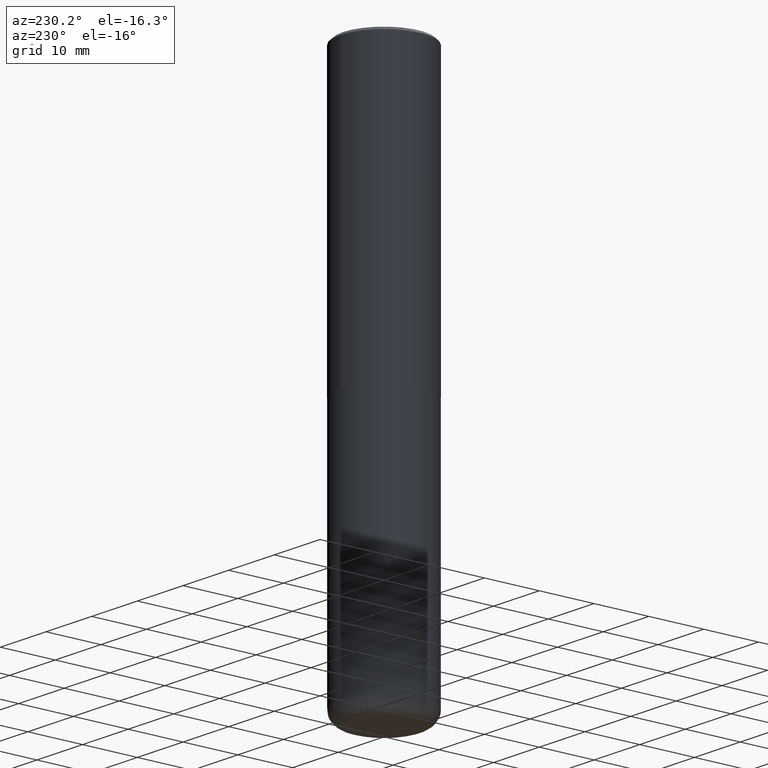
[diagram: clean part render]
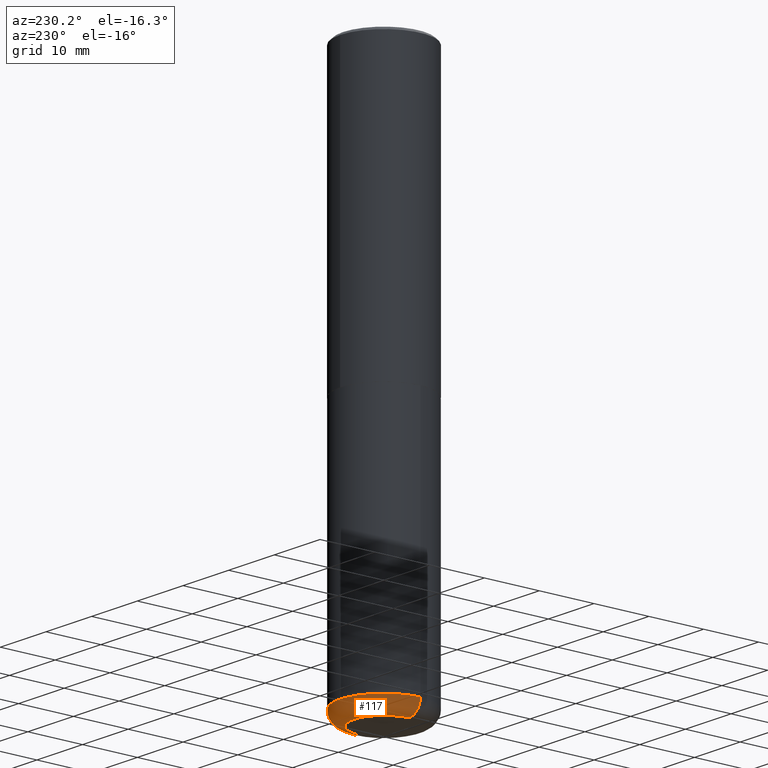
[diagram: same view with one face highlighted and labeled with its STEP entity id]
A machine part, auxiliary view. The second image highlights one B-rep face of the part: STEP entity #117.
In plain terms, the highlighted toroidal blend (fillet) surface has major radius 5.5004 mm and minor (blend) radius 2.4994 mm.
Its self-contained STEP definition (entity closure, byte-faithful):
#3 = AXIS2_PLACEMENT_3D ( 'NONE', #110, #141, #201 ) ;
#8 = DIRECTION ( 'NONE',  ( 7.105427357601001859E-15, 1.000000000000000000, -3.491481338843145583E-15 ) ) ;
#13 = ORIENTED_EDGE ( 'NONE', *, *, #249, .F. ) ;
#26 = VERTEX_POINT ( 'NONE', #369 ) ;
#28 = AXIS2_PLACEMENT_3D ( 'NONE', #139, #172, #390 ) ;
#33 = CARTESIAN_POINT ( 'NONE',  ( 9.627810689950881427E-29, -1.374596203102546184E-14, -3.936999999999999389 ) ) ;
#51 = FACE_OUTER_BOUND ( 'NONE', #128, .T. ) ;
#52 = ORIENTED_EDGE ( 'NONE', *, *, #100, .T. ) ;
#85 = CARTESIAN_POINT ( 'NONE',  ( -0.2165500000000000203, -1.186371997299480179E-14, -3.838600000000000012 ) ) ;
#87 = TOROIDAL_SURFACE ( 'NONE', #236, 0.2165500000000000203, 0.09839999999999984870 ) ;
#92 = CIRCLE ( 'NONE', #3, 0.09839999999999986258 ) ;
#100 = EDGE_CURVE ( 'NONE', #174, #26, #295, .T. ) ;
#110 = CARTESIAN_POINT ( 'NONE',  ( 0.2165500000000000203, -1.491456083513625814E-14, -3.838600000000000012 ) ) ;
#113 = EDGE_CURVE ( 'NONE', #26, #277, #137, .T. ) ;
#115 = VERTEX_POINT ( 'NONE', #241 ) ;
#117 = ADVANCED_FACE ( 'NONE', ( #51 ), #87, .T. ) ;
#122 = AXIS2_PLACEMENT_3D ( 'NONE', #33, #196, #396 ) ;
#128 = EDGE_LOOP ( 'NONE', ( #52, #408, #262, #13 ) ) ;
#137 = CIRCLE ( 'NONE', #282, 0.09839999999999986258 ) ;
#139 = CARTESIAN_POINT ( 'NONE',  ( 9.387176559422264284E-29, -1.340240026728329889E-14, -3.838600000000000012 ) ) ;
#141 = DIRECTION ( 'NONE',  ( -6.982962677686266711E-15, -1.000000000000000000, 3.491481338843145583E-15 ) ) ;
#144 = EDGE_CURVE ( 'NONE', #115, #277, #394, .T. ) ;
#172 = DIRECTION ( 'NONE',  ( -2.445468806185136597E-29, 3.491481338843145583E-15, 1.000000000000000000 ) ) ;
#174 = VERTEX_POINT ( 'NONE', #239 ) ;
#181 = CARTESIAN_POINT ( 'NONE',  ( 9.387176559422264284E-29, -1.340240026728329889E-14, -3.838600000000000012 ) ) ;
#196 = DIRECTION ( 'NONE',  ( -2.445468806185136597E-29, 3.491481338843145583E-15, 1.000000000000000000 ) ) ;
#201 = DIRECTION ( 'NONE',  ( 1.000000000000000000, -6.982962677686271444E-15, 0.000000000000000000 ) ) ;
#236 = AXIS2_PLACEMENT_3D ( 'NONE', #181, #275, #273 ) ;
#239 = CARTESIAN_POINT ( 'NONE',  ( 0.2165500000000000203, -1.525812259887842266E-14, -3.936999999999999389 ) ) ;
#241 = CARTESIAN_POINT ( 'NONE',  ( 0.3149499999999999522, -1.560168436262058718E-14, -3.838600000000000012 ) ) ;
#249 = EDGE_CURVE ( 'NONE', #174, #115, #92, .T. ) ;
#262 = ORIENTED_EDGE ( 'NONE', *, *, #144, .F. ) ;
#272 = DIRECTION ( 'NONE',  ( -1.000000000000000000, 7.105427357601009747E-15, 0.000000000000000000 ) ) ;
#273 = DIRECTION ( 'NONE',  ( 1.000000000000000000, -6.982962677686266711E-15, 4.883557194083112901E-29 ) ) ;
#275 = DIRECTION ( 'NONE',  ( -2.445468806185136597E-29, 3.491481338843145583E-15, 1.000000000000000000 ) ) ;
#277 = VERTEX_POINT ( 'NONE', #389 ) ;
#282 = AXIS2_PLACEMENT_3D ( 'NONE', #85, #8, #272 ) ;
#295 = CIRCLE ( 'NONE', #122, 0.2165500000000000203 ) ;
#369 = CARTESIAN_POINT ( 'NONE',  ( -0.2165500000000000203, -1.168591382887191382E-14, -3.936999999999999389 ) ) ;
#389 = CARTESIAN_POINT ( 'NONE',  ( -0.3149499999999999522, -1.116454592100686291E-14, -3.838600000000000012 ) ) ;
#390 = DIRECTION ( 'NONE',  ( 1.000000000000000000, -6.982962677686263555E-15, 0.000000000000000000 ) ) ;
#394 = CIRCLE ( 'NONE', #28, 0.3149500000000000077 ) ;
#396 = DIRECTION ( 'NONE',  ( 1.000000000000000000, -6.982962677686264344E-15, 0.000000000000000000 ) ) ;
#408 = ORIENTED_EDGE ( 'NONE', *, *, #113, .T. ) ;